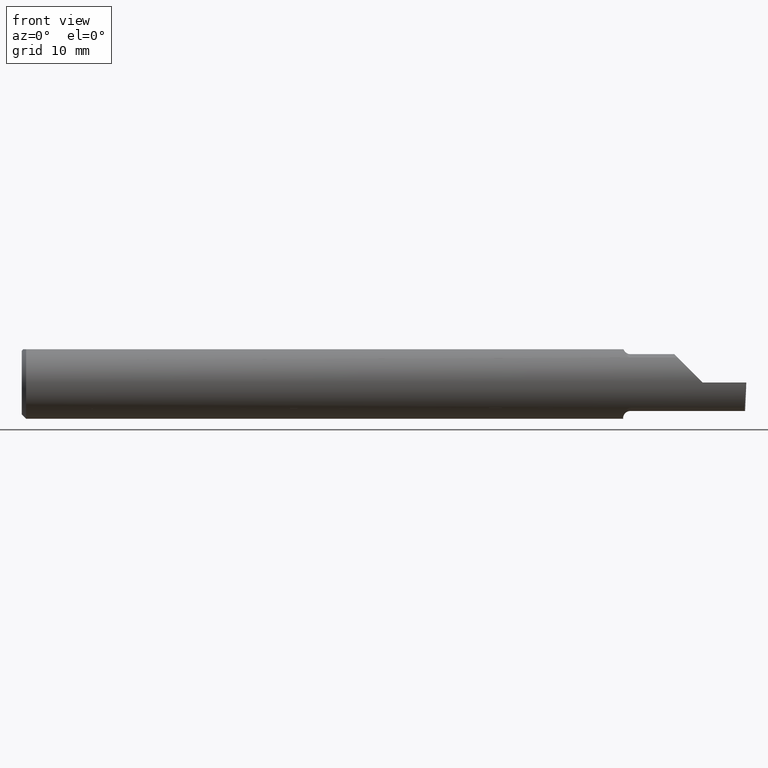
[diagram: clean part render]
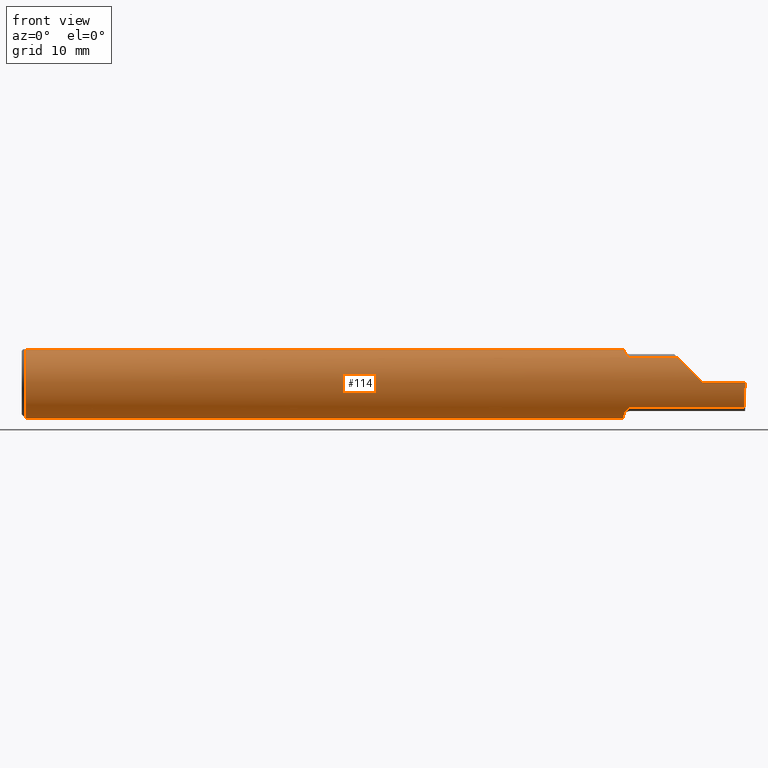
[diagram: same view with one face highlighted and labeled with its STEP entity id]
A machine part, front view. The second image highlights one B-rep face of the part: STEP entity #114.
In plain terms, the highlighted cylindrical surface (edge-blend (fillet) strip) has radius 3.1712 mm, axis along (-1, -0, -0).
Its self-contained STEP definition (entity closure, byte-faithful):
#1 = CARTESIAN_POINT ( 'NONE',  ( 2.097502509400849480, -0.09015216647698104380, 0.08637192471808591288 ) ) ;
#8 = LINE ( 'NONE', #558, #620 ) ;
#17 = CARTESIAN_POINT ( 'NONE',  ( 2.076326891871132840, -0.04895916665958125608, 0.1148500000000000076 ) ) ;
#30 = CARTESIAN_POINT ( 'NONE',  ( 2.083278800716858115, -0.07573621487658314944, -0.09938639293507189887 ) ) ;
#45 = EDGE_CURVE ( 'NONE', #350, #655, #514, .T. ) ;
#48 = CARTESIAN_POINT ( 'NONE',  ( 2.075000000000000178, 0.000000000000000000, 0.000000000000000000 ) ) ;
#57 = CIRCLE ( 'NONE', #595, 0.1248500000000000026 ) ;
#59 = CARTESIAN_POINT ( 'NONE',  ( 2.287163018370355072, -0.1127002472623169216, 0.06283698162964553025 ) ) ;
#68 = EDGE_CURVE ( 'NONE', #679, #275, #279, .T. ) ;
#71 = CARTESIAN_POINT ( 'NONE',  ( 2.263628075281542529, -0.09015216647662421812, 0.08637192471845822617 ) ) ;
#76 = ORIENTED_EDGE ( 'NONE', *, *, #751, .F. ) ;
#80 = EDGE_CURVE ( 'NONE', #574, #687, #361, .T. ) ;
#102 = ORIENTED_EDGE ( 'NONE', *, *, #229, .F. ) ;
#103 = AXIS2_PLACEMENT_3D ( 'NONE', #267, #153, #513 ) ;
#111 = CARTESIAN_POINT ( 'NONE',  ( 2.291250000000000231, -0.09015216647662482874, -0.08637192471845768493 ) ) ;
#114 = ADVANCED_FACE ( 'NONE', ( #272 ), #455, .T. ) ;
#116 = ORIENTED_EDGE ( 'NONE', *, *, #80, .T. ) ;
#117 = LINE ( 'NONE', #111, #323 ) ;
#138 = ORIENTED_EDGE ( 'NONE', *, *, #488, .F. ) ;
#140 = CARTESIAN_POINT ( 'NONE',  ( 0.01499999999999999944, 0.000000000000000000, 0.000000000000000000 ) ) ;
#142 = CARTESIAN_POINT ( 'NONE',  ( 2.494033449660867152, -0.09015216647662482874, -0.08637192471845768493 ) ) ;
#153 = DIRECTION ( 'NONE',  ( -1.000000000000000000, -0.000000000000000000, -0.000000000000000000 ) ) ;
#156 = CARTESIAN_POINT ( 'NONE',  ( 2.080064983703085346, -0.06736177101644118259, -0.1052426774175050095 ) ) ;
#180 = CARTESIAN_POINT ( 'NONE',  ( 2.079335346929732431, -0.06618116991733512255, 0.1062694618618284514 ) ) ;
#190 = VECTOR ( 'NONE', #749, 39.37007874015748143 ) ;
#192 = VERTEX_POINT ( 'NONE', #424 ) ;
#196 = CARTESIAN_POINT ( 'NONE',  ( 2.494256244271084721, -0.1126860773865890480, -0.06285177167860772629 ) ) ;
#200 = CARTESIAN_POINT ( 'NONE',  ( 2.085226514481665738, -0.07966992494485841680, -0.09623747760188226807 ) ) ;
#204 = CARTESIAN_POINT ( 'NONE',  ( 2.494835769263151537, -0.1248351010429638308, -0.03262966116142157480 ) ) ;
#208 = EDGE_CURVE ( 'NONE', #412, #260, #756, .T. ) ;
#209 = CARTESIAN_POINT ( 'NONE',  ( 2.263628075281542529, -0.09015216647662421812, 0.08637192471845822617 ) ) ;
#215 = CARTESIAN_POINT ( 'NONE',  ( 2.495690077103728921, -0.1248499999950965084, 1.733801157256528502E-17 ) ) ;
#228 =( BOUNDED_CURVE ( )  B_SPLINE_CURVE ( 3, ( #677, #610, #59, #71 ),
 .UNSPECIFIED., .F., .F. ) 
 B_SPLINE_CURVE_WITH_KNOTS ( ( 4, 4 ),
 ( 4.712388980384690562, 5.476375539154175520 ),
 .UNSPECIFIED. ) 
 CURVE ( )  GEOMETRIC_REPRESENTATION_ITEM ( )  RATIONAL_B_SPLINE_CURVE ( ( 1.000000000000000000, 0.9519489620492029847, 0.9519489620492029847, 1.000000000000000000 ) ) 
 REPRESENTATION_ITEM ( '' )  );
#229 = EDGE_CURVE ( 'NONE', #192, #380, #494, .T. ) ;
#238 = CARTESIAN_POINT ( 'NONE',  ( 2.091486677516483983, -0.08696861555848746372, 0.08959154238187769237 ) ) ;
#239 = B_SPLINE_CURVE_WITH_KNOTS ( 'NONE', 3,
 ( #381, #630, #512, #777 ),
 .UNSPECIFIED., .F., .F.,
 ( 4, 4 ),
 ( 0.001640801893433561616, 0.002088276671954475590 ),
 .UNSPECIFIED. ) ;
#244 = DIRECTION ( 'NONE',  ( 1.000000000000000000, 0.000000000000000000, 0.000000000000000000 ) ) ;
#248 = CARTESIAN_POINT ( 'NONE',  ( 2.100000000000000089, -0.09015216647662478711, -0.08637192471845772657 ) ) ;
#250 = ORIENTED_EDGE ( 'NONE', *, *, #45, .F. ) ;
#260 = VERTEX_POINT ( 'NONE', #718 ) ;
#263 = CARTESIAN_POINT ( 'NONE',  ( 2.078850144156349611, -0.06295012366509140922, -0.1079450122012245994 ) ) ;
#267 = CARTESIAN_POINT ( 'NONE',  ( 0.000000000000000000, 0.000000000000000000, 0.000000000000000000 ) ) ;
#272 = FACE_OUTER_BOUND ( 'NONE', #682, .T. ) ;
#275 = VERTEX_POINT ( 'NONE', #649 ) ;
#279 = LINE ( 'NONE', #530, #438 ) ;
#288 = VERTEX_POINT ( 'NONE', #294 ) ;
#294 = CARTESIAN_POINT ( 'NONE',  ( 2.100000000000000089, -0.09015216647662482874, 0.08637192471845769881 ) ) ;
#295 = ORIENTED_EDGE ( 'NONE', *, *, #435, .F. ) ;
#304 = CARTESIAN_POINT ( 'NONE',  ( 2.076326891871132840, -0.04895916665958125608, 0.1148500000000000076 ) ) ;
#311 = AXIS2_PLACEMENT_3D ( 'NONE', #467, #781, #709 ) ;
#323 = VECTOR ( 'NONE', #557, 39.37007874015748143 ) ;
#327 = LINE ( 'NONE', #582, #190 ) ;
#328 = CARTESIAN_POINT ( 'NONE',  ( 2.076227715916085348, -0.04883822427082835926, -0.1150249279297937549 ) ) ;
#345 = ORIENTED_EDGE ( 'NONE', *, *, #68, .T. ) ;
#350 = VERTEX_POINT ( 'NONE', #248 ) ;
#361 =( BOUNDED_CURVE ( )  B_SPLINE_CURVE ( 3, ( #142, #196, #204, #762 ),
 .UNSPECIFIED., .F., .T. ) 
 B_SPLINE_CURVE_WITH_KNOTS ( ( 4, 4 ),
 ( 0.2190942387645155864, 0.9826237902196512941 ),
 .UNSPECIFIED. ) 
 CURVE ( )  GEOMETRIC_REPRESENTATION_ITEM ( )  RATIONAL_B_SPLINE_CURVE ( ( 1.000000000000000000, 0.9520057322288819623, 0.9520057322288819623, 1.000000000000000000 ) ) 
 REPRESENTATION_ITEM ( '' )  );
#368 = VERTEX_POINT ( 'NONE', #667 ) ;
#369 = CARTESIAN_POINT ( 'NONE',  ( 2.077489051389917130, -0.05793447593726073347, 0.1110239341510882716 ) ) ;
#375 = EDGE_CURVE ( 'NONE', #288, #519, #8, .T. ) ;
#380 = VERTEX_POINT ( 'NONE', #552 ) ;
#381 = CARTESIAN_POINT ( 'NONE',  ( 2.075756598855984514, -0.04385000000000000009, -0.1168961077196328247 ) ) ;
#401 = EDGE_CURVE ( 'NONE', #260, #368, #432, .T. ) ;
#402 = CARTESIAN_POINT ( 'NONE',  ( 2.094784064659362510, -0.08911389870154513837, -0.08746251087962812754 ) ) ;
#403 = AXIS2_PLACEMENT_3D ( 'NONE', #48, #549, #411 ) ;
#404 = VECTOR ( 'NONE', #593, 39.37007874015748854 ) ;
#405 = ORIENTED_EDGE ( 'NONE', *, *, #401, .F. ) ;
#411 = DIRECTION ( 'NONE',  ( 0.000000000000000000, 0.000000000000000000, -1.000000000000000000 ) ) ;
#412 = VERTEX_POINT ( 'NONE', #681 ) ;
#419 = B_SPLINE_CURVE_WITH_KNOTS ( 'NONE', 3,
 ( #304, #369, #180, #554, #737, #503, #238, #436, #1, #565 ),
 .UNSPECIFIED., .F., .F.,
 ( 4, 2, 2, 2, 4 ),
 ( 5.065792501956622349E-07, 0.0007388407002080830781, 0.001108007760687027519, 0.001292591290926493669, 0.001477174821165960035 ),
 .UNSPECIFIED. ) ;
#424 = CARTESIAN_POINT ( 'NONE',  ( 0.01499999999999999944, 0.000000000000000000, -0.1248500000000000026 ) ) ;
#432 = LINE ( 'NONE', #439, #693 ) ;
#433 = VERTEX_POINT ( 'NONE', #17 ) ;
#435 = EDGE_CURVE ( 'NONE', #380, #433, #327, .T. ) ;
#436 = CARTESIAN_POINT ( 'NONE',  ( 2.095195245915189464, -0.08928014009842864807, 0.08728826463235887789 ) ) ;
#438 = VECTOR ( 'NONE', #646, 39.37007874015748143 ) ;
#439 = CARTESIAN_POINT ( 'NONE',  ( 0.000000000000000000, 0.04895916665957456698, 0.1148500000000000076 ) ) ;
#446 = ORIENTED_EDGE ( 'NONE', *, *, #208, .F. ) ;
#455 = CYLINDRICAL_SURFACE ( 'NONE', #103, 0.1248500000000000026 ) ;
#459 = CARTESIAN_POINT ( 'NONE',  ( 2.089311064734461265, -0.08485061678078635594, -0.09161469295857078976 ) ) ;
#467 = CARTESIAN_POINT ( 'NONE',  ( 0.01499999999999999944, 0.000000000000000000, 0.000000000000000000 ) ) ;
#479 = CARTESIAN_POINT ( 'NONE',  ( 2.494033449660867152, -0.09015216647662482874, -0.08637192471845768493 ) ) ;
#488 = EDGE_CURVE ( 'NONE', #368, #192, #57, .T. ) ;
#494 = CIRCLE ( 'NONE', #311, 0.1248500000000000026 ) ;
#503 = CARTESIAN_POINT ( 'NONE',  ( 2.089990549600782899, -0.08554147198592959578, 0.09096407607054063371 ) ) ;
#512 = CARTESIAN_POINT ( 'NONE',  ( 2.075000000000000178, -0.03284222813693383342, -0.1205938689030582600 ) ) ;
#513 = DIRECTION ( 'NONE',  ( 0.000000000000000000, 0.000000000000000000, 1.000000000000000000 ) ) ;
#514 = B_SPLINE_CURVE_WITH_KNOTS ( 'NONE', 3,
 ( #700, #587, #402, #638, #459, #200, #30, #156, #263, #631, #328, #704 ),
 .UNSPECIFIED., .F., .F.,
 ( 4, 2, 2, 2, 2, 4 ),
 ( 1.963988863383734834E-07, 0.0002052720857047373294, 0.0004103477725231363150, 0.0008204991461599447488, 0.001230650519796752966, 0.001640801893433561616 ),
 .UNSPECIFIED. ) ;
#517 = DIRECTION ( 'NONE',  ( 0.000000000000000000, 0.000000000000000000, 1.000000000000000000 ) ) ;
#519 = VERTEX_POINT ( 'NONE', #209 ) ;
#530 = CARTESIAN_POINT ( 'NONE',  ( 3.749399456654637998E-32, -0.1248500000000000026, 3.061616997868380676E-16 ) ) ;
#537 = EDGE_CURVE ( 'NONE', #655, #412, #239, .T. ) ;
#540 = CARTESIAN_POINT ( 'NONE',  ( 2.075756598855984514, -0.04385000000000000009, -0.1168961077196328247 ) ) ;
#547 = CARTESIAN_POINT ( 'NONE',  ( 2.493072779947982820, -0.1248043149033065402, -0.09996577117162359916 ) ) ;
#549 = DIRECTION ( 'NONE',  ( 1.000000000000000000, 0.000000000000000000, 0.000000000000000000 ) ) ;
#552 = CARTESIAN_POINT ( 'NONE',  ( 0.01499999999999999944, -0.04895916665957456698, 0.1148500000000000076 ) ) ;
#554 = CARTESIAN_POINT ( 'NONE',  ( 2.084117122045984871, -0.07738857672837917701, 0.09808127502721034063 ) ) ;
#557 = DIRECTION ( 'NONE',  ( -1.000000000000000000, -0.000000000000000000, -0.000000000000000000 ) ) ;
#558 = CARTESIAN_POINT ( 'NONE',  ( 2.291250000000000231, -0.09015216647662482874, 0.08637192471845768493 ) ) ;
#565 = CARTESIAN_POINT ( 'NONE',  ( 2.100000000000000089, -0.09015216647662482874, 0.08637192471845769881 ) ) ;
#574 = VERTEX_POINT ( 'NONE', #479 ) ;
#582 = CARTESIAN_POINT ( 'NONE',  ( 0.000000000000000000, -0.04895916665957456698, 0.1148500000000000076 ) ) ;
#587 = CARTESIAN_POINT ( 'NONE',  ( 2.097259638933032022, -0.09015216647662446792, -0.08637192471845805963 ) ) ;
#593 = DIRECTION ( 'NONE',  ( 0.02617296143184116158, -0.0004568507411563390110, 0.9996573249755575929 ) ) ;
#595 = AXIS2_PLACEMENT_3D ( 'NONE', #140, #703, #517 ) ;
#609 = ORIENTED_EDGE ( 'NONE', *, *, #537, .F. ) ;
#610 = CARTESIAN_POINT ( 'NONE',  ( 2.317406910344188997, -0.1248500000000000304, 0.03259308965581166062 ) ) ;
#620 = VECTOR ( 'NONE', #244, 39.37007874015748143 ) ;
#630 = CARTESIAN_POINT ( 'NONE',  ( 2.075242610568498236, -0.03840785182185598584, -0.1189375631818110624 ) ) ;
#631 = CARTESIAN_POINT ( 'NONE',  ( 2.076929090759344287, -0.05370719728932719927, -0.1128289886859671631 ) ) ;
#636 = ORIENTED_EDGE ( 'NONE', *, *, #650, .T. ) ;
#638 = CARTESIAN_POINT ( 'NONE',  ( 2.090875432832430825, -0.08647060418110404101, -0.09007670266896510014 ) ) ;
#646 = DIRECTION ( 'NONE',  ( -1.000000000000000000, -0.000000000000000000, -0.000000000000000000 ) ) ;
#649 = CARTESIAN_POINT ( 'NONE',  ( 2.350000000000000089, -0.1248500000000000026, 1.836970198721028825E-17 ) ) ;
#650 = EDGE_CURVE ( 'NONE', #687, #679, #656, .T. ) ;
#655 = VERTEX_POINT ( 'NONE', #540 ) ;
#656 = LINE ( 'NONE', #547, #404 ) ;
#667 = CARTESIAN_POINT ( 'NONE',  ( 0.01499999999999987454, 0.04895916665957496944, 0.1148500000000000076 ) ) ;
#673 = ORIENTED_EDGE ( 'NONE', *, *, #739, .F. ) ;
#677 = CARTESIAN_POINT ( 'NONE',  ( 2.350000000000000089, -0.1248500000000000026, 1.836970198721028825E-17 ) ) ;
#679 = VERTEX_POINT ( 'NONE', #215 ) ;
#681 = CARTESIAN_POINT ( 'NONE',  ( 2.075000000000000622, -0.02715330672748003313, -0.1218614805168695830 ) ) ;
#682 = EDGE_LOOP ( 'NONE', ( #673, #116, #636, #345, #752, #779, #76, #295, #102, #138, #405, #446, #609, #250 ) ) ;
#687 = VERTEX_POINT ( 'NONE', #726 ) ;
#693 = VECTOR ( 'NONE', #738, 39.37007874015748143 ) ;
#700 = CARTESIAN_POINT ( 'NONE',  ( 2.100000000000000089, -0.09015216647662478711, -0.08637192471845772657 ) ) ;
#703 = DIRECTION ( 'NONE',  ( -1.000000000000000000, -0.000000000000000000, -0.000000000000000000 ) ) ;
#704 = CARTESIAN_POINT ( 'NONE',  ( 2.075756598855984514, -0.04385000000000000009, -0.1168961077196328247 ) ) ;
#709 = DIRECTION ( 'NONE',  ( 0.000000000000000000, 0.000000000000000000, 1.000000000000000000 ) ) ;
#718 = CARTESIAN_POINT ( 'NONE',  ( 2.075000000000000178, 0.04895916665957496944, 0.1148500000000000076 ) ) ;
#726 = CARTESIAN_POINT ( 'NONE',  ( 2.495688583004118666, -0.1248499869621840785, -5.705736120969982501E-05 ) ) ;
#737 = CARTESIAN_POINT ( 'NONE',  ( 2.086053217927789749, -0.08094812012701359250, 0.09514231764808604719 ) ) ;
#738 = DIRECTION ( 'NONE',  ( -1.000000000000000000, -0.000000000000000000, -0.000000000000000000 ) ) ;
#739 = EDGE_CURVE ( 'NONE', #574, #350, #117, .T. ) ;
#749 = DIRECTION ( 'NONE',  ( 1.000000000000000000, 0.000000000000000000, 0.000000000000000000 ) ) ;
#751 = EDGE_CURVE ( 'NONE', #433, #288, #419, .T. ) ;
#752 = ORIENTED_EDGE ( 'NONE', *, *, #789, .T. ) ;
#756 = CIRCLE ( 'NONE', #403, 0.1248500000000000026 ) ;
#762 = CARTESIAN_POINT ( 'NONE',  ( 2.495688583004118666, -0.1248499869621840785, -5.705736120969982501E-05 ) ) ;
#777 = CARTESIAN_POINT ( 'NONE',  ( 2.075000000000000622, -0.02715330672748003313, -0.1218614805168695830 ) ) ;
#779 = ORIENTED_EDGE ( 'NONE', *, *, #375, .F. ) ;
#781 = DIRECTION ( 'NONE',  ( -1.000000000000000000, -0.000000000000000000, -0.000000000000000000 ) ) ;
#789 = EDGE_CURVE ( 'NONE', #275, #519, #228, .T. ) ;